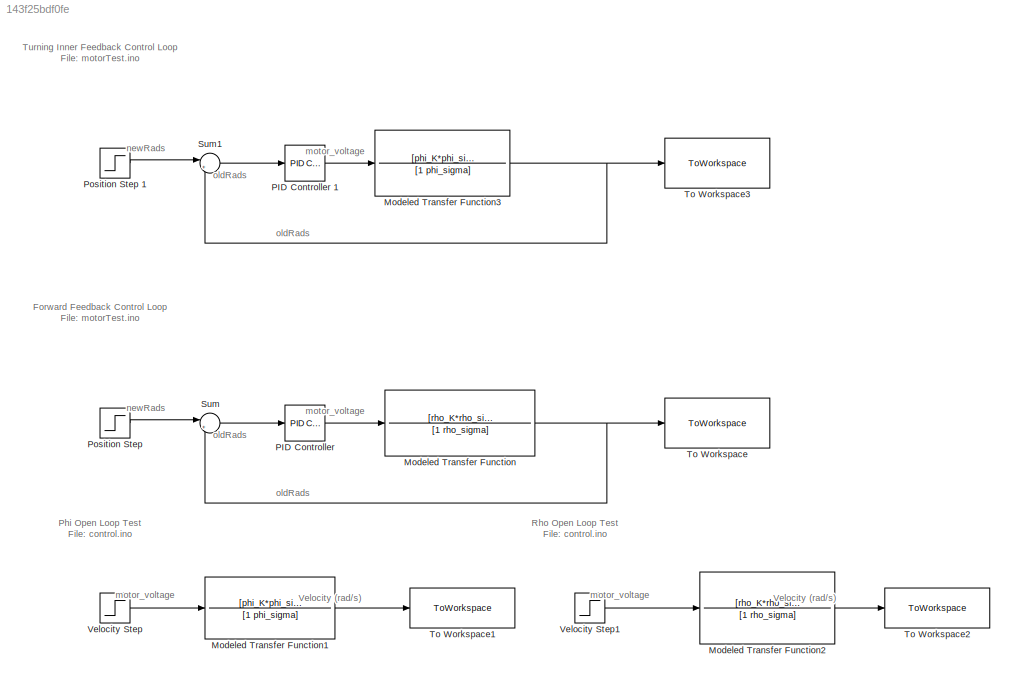
MODEL slx_143f25bdf0fe
KIND model
CONFIG AbsTol = auto
CONFIG EnableMultiTasking = off
CONFIG FixedStep = auto
CONFIG MaxStep = auto
CONFIG MinStep = auto
CONFIG RelTol = 1e-3
CONFIG SampleTimeConstraint = Unconstrained
CONFIG SolverName = VariableStepAuto
CONFIG StartTime = 0.0
CONFIG StopTime = 10.0
BLOCK [TransferFcn] Modeled Transfer Function
  Commented = on
  Denominator = [1 rho_sigma]
  Numerator = [rho_K*rho_sigma]
BLOCK [TransferFcn] Modeled Transfer Function1
  Denominator = [1 phi_sigma]
  Numerator = [phi_K*phi_sigma]
BLOCK [TransferFcn] Modeled Transfer Function2
  Denominator = [1 rho_sigma]
  Numerator = [rho_K*rho_sigma]
BLOCK [TransferFcn] Modeled Transfer Function3
  Denominator = [1 phi_sigma]
  Numerator = [phi_K*phi_sigma]
BLOCK [Reference] PID Controller   REF=slpidlib/PID Controller
  Commented = on
  Ports = [1, 1]
  SourceBlock = slpidlib/PID Controller
  SourceProductBaseCode = SL
  SourceType = PID 1dof
BLOCK [Reference] PID Controller 1  REF=slpidlib/PID Controller
  Ports = [1, 1]
  SourceBlock = slpidlib/PID Controller
  SourceProductBaseCode = SL
  SourceType = PID 1dof
BLOCK [Step] Position Step 
  Commented = on
  SampleTime = 0
BLOCK [Step] Position Step 1
  SampleTime = 0
BLOCK [Sum] Sum
  Commented = on
  Inputs = |+-
  Ports = [2, 1]
BLOCK [Sum] Sum1
  Inputs = |+-
  Ports = [2, 1]
BLOCK [ToWorkspace] To Workspace
  Commented = on
  FixptAsFi = on
  MaxDataPoints = inf
  Ports = [1]
  SampleTime = -1
  SaveFormat = Timeseries
  VariableName = Closed_Vel_Forward
BLOCK [ToWorkspace] To Workspace1
  FixptAsFi = on
  MaxDataPoints = inf
  Ports = [1]
  SampleTime = -1
  SaveFormat = Timeseries
  VariableName = Open_Vel_Turn
BLOCK [ToWorkspace] To Workspace2
  FixptAsFi = on
  MaxDataPoints = inf
  Ports = [1]
  SampleTime = -1
  SaveFormat = Timeseries
  VariableName = Open_Vel_Forward
BLOCK [ToWorkspace] To Workspace3
  FixptAsFi = on
  MaxDataPoints = inf
  Ports = [1]
  SampleTime = -1
  SaveFormat = Timeseries
  VariableName = Closed_Vel_Turn
BLOCK [Step] Velocity Step
  SampleTime = 0
BLOCK [Step] Velocity Step1
  SampleTime = 0
ANNOTATION (root): Forward Feedback Control Loop File: motorTest.ino
ANNOTATION (root): Phi Open Loop Test File: control.ino
ANNOTATION (root): Rho Open Loop Test File: control.ino
ANNOTATION (root): Turning Inner Feedback Control Loop File: motorTest.ino
ANNOTATION (root): Velocity (rad/s)
ANNOTATION (root): motor_voltage
ANNOTATION (root): newRads
ANNOTATION (root): oldRads
LINE Modeled Transfer Function1:1 -> To Workspace1:1
LINE Modeled Transfer Function2:1 -> To Workspace2:1
NET Modeled Transfer Function3:1 -> Sum1:2, To Workspace3:1
NET Modeled Transfer Function:1 -> Sum:2, To Workspace:1
LINE PID Controller 1:1 -> Modeled Transfer Function3:1
LINE PID Controller :1 -> Modeled Transfer Function:1
LINE Position Step 1:1 -> Sum1:1
LINE Position Step :1 -> Sum:1
LINE Sum1:1 -> PID Controller 1:1
LINE Sum:1 -> PID Controller :1
LINE Velocity Step1:1 -> Modeled Transfer Function2:1
LINE Velocity Step:1 -> Modeled Transfer Function1:1
note: NET lines group one-source signal fan-out (src -> all destinations, sorted); 1:1 wires keep LINE
